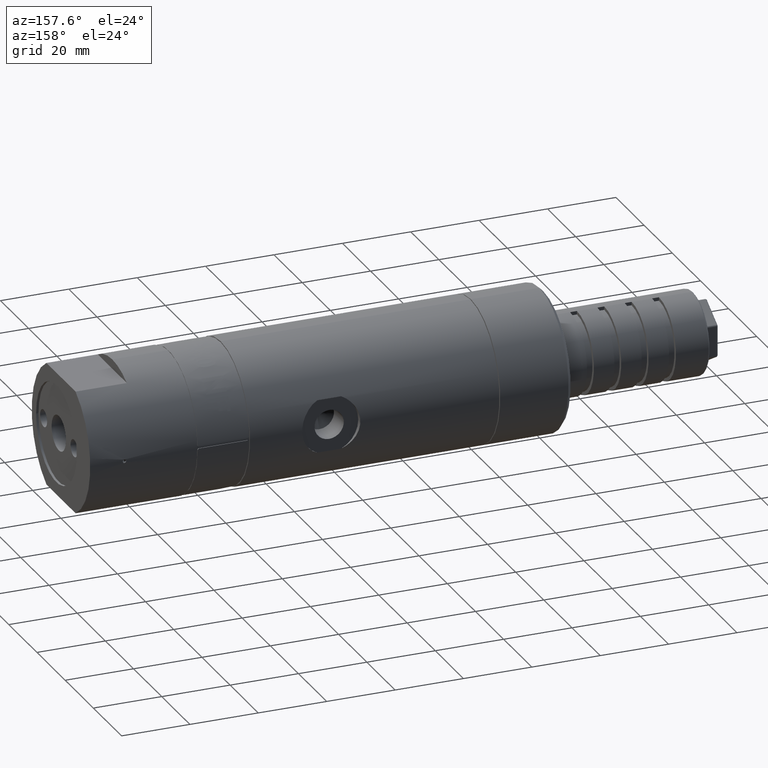
[diagram: clean part render]
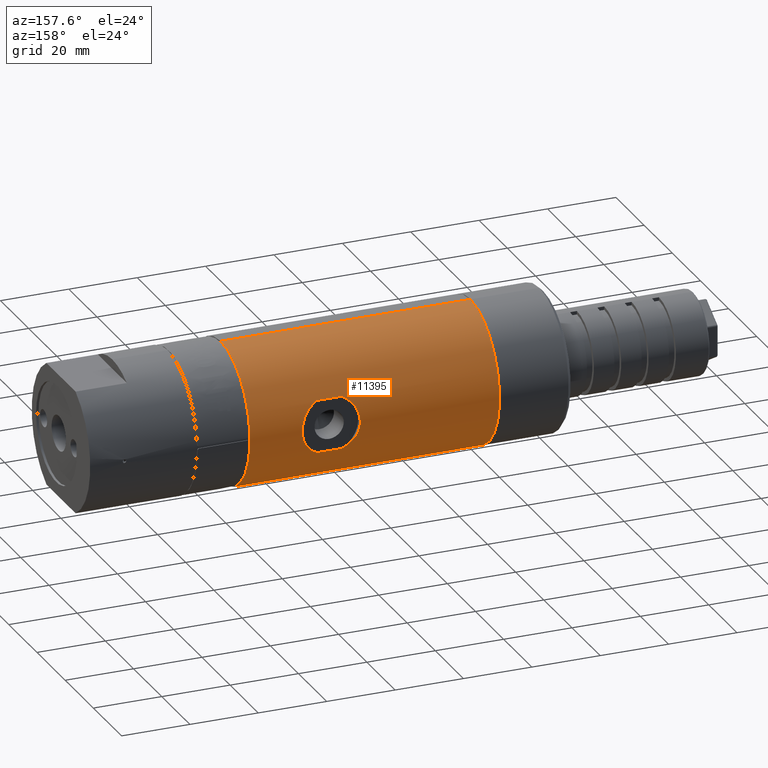
[diagram: same view with one face highlighted and labeled with its STEP entity id]
A machine part, auxiliary view. The second image highlights one B-rep face of the part: STEP entity #11395.
In plain terms, the highlighted cylindrical surface (partial cylindrical patch) has radius 20.75 mm, axis along (1, 0, 0).
Its self-contained STEP definition (entity closure, byte-faithful):
#72 = LINE ( 'NONE', #18176, #18380 ) ;
#102 = CARTESIAN_POINT ( 'NONE',  ( -78.96210577950921600, 20.73450130442244800, -0.8278428492540156300 ) ) ;
#316 = CYLINDRICAL_SURFACE ( 'NONE', #9863, 20.75000000000000000 ) ;
#356 = EDGE_CURVE ( 'NONE', #13719, #6811, #15074, .T. ) ;
#488 = EDGE_CURVE ( 'NONE', #3478, #14555, #15658, .T. ) ;
#613 = CARTESIAN_POINT ( 'NONE',  ( 0.0000000000000000000, 19.25000000000000000, 7.745966692414829600 ) ) ;
#787 = EDGE_LOOP ( 'NONE', ( #5572, #4416, #2436, #18032 ) ) ;
#1001 = CARTESIAN_POINT ( 'NONE',  ( -46.69999999999999600, 0.0000000000000000000, -20.75000000000000000 ) ) ;
#1033 = CARTESIAN_POINT ( 'NONE',  ( -62.03789422049075600, 20.73450130442244400, 0.8278428492540128600 ) ) ;
#1101 = CARTESIAN_POINT ( 'NONE',  ( -64.36598534288829400, 19.89662988271893700, -5.897899854176816200 ) ) ;
#1213 = CARTESIAN_POINT ( 'NONE',  ( -62.23991907072714700, 20.65260302551457300, 2.045980382197314400 ) ) ;
#1247 = EDGE_LOOP ( 'NONE', ( #3687, #9314, #10057, #13323 ) ) ;
#1277 = CARTESIAN_POINT ( 'NONE',  ( -78.52735853897979700, 20.56063131046049000, -2.824267616416937400 ) ) ;
#1467 = CARTESIAN_POINT ( 'NONE',  ( -76.34614309362868300, 19.80916484244842100, 6.183570100048255500 ) ) ;
#1658 = FACE_BOUND ( 'NONE', #1247, .T. ) ;
#1807 = CARTESIAN_POINT ( 'NONE',  ( -119.7000000000000000, 0.0000000000000000000, 0.0000000000000000000 ) ) ;
#2127 = CARTESIAN_POINT ( 'NONE',  ( -67.00000000000000000, 19.25000000000000000, 7.745966692414829600 ) ) ;
#2429 = CARTESIAN_POINT ( 'NONE',  ( -65.57713645101269200, 19.54999994802512100, 6.976011603570524900 ) ) ;
#2436 = ORIENTED_EDGE ( 'NONE', *, *, #10224, .F. ) ;
#2563 = CARTESIAN_POINT ( 'NONE',  ( -65.57518557414859100, 19.55041656501267200, -6.975092535909417400 ) ) ;
#2680 = CARTESIAN_POINT ( 'NONE',  ( -78.93928701185345200, 20.72518538321733000, -1.034908741973208400 ) ) ;
#2809 = CARTESIAN_POINT ( 'NONE',  ( -78.99230265718544800, 20.74684348378641400, -0.4163575211595544300 ) ) ;
#3102 = CARTESIAN_POINT ( 'NONE',  ( 0.0000000000000000000, 0.0000000000000000000, 0.0000000000000000000 ) ) ;
#3221 = DIRECTION ( 'NONE',  ( 1.000000000000000000, 0.0000000000000000000, 0.0000000000000000000 ) ) ;
#3414 = VECTOR ( 'NONE', #5487, 1000.000000000000000 ) ;
#3431 = CARTESIAN_POINT ( 'NONE',  ( -46.69999999999999600, 2.541142108230757900E-015, 20.75000000000000000 ) ) ;
#3478 = VERTEX_POINT ( 'NONE', #15979 ) ;
#3620 = EDGE_CURVE ( 'NONE', #11113, #6713, #72, .T. ) ;
#3654 = LINE ( 'NONE', #14275, #5020 ) ;
#3687 = ORIENTED_EDGE ( 'NONE', *, *, #488, .F. ) ;
#4128 = CARTESIAN_POINT ( 'NONE',  ( -78.84902143031295900, 20.68853872183755300, -1.647497085513964600 ) ) ;
#4190 = CARTESIAN_POINT ( 'NONE',  ( -78.04014256731947800, 20.37500826200443500, -3.944994109799393900 ) ) ;
#4328 = CARTESIAN_POINT ( 'NONE',  ( -78.04576897151741800, 20.37710067763839200, 3.934006386454518700 ) ) ;
#4384 = CARTESIAN_POINT ( 'NONE',  ( -74.74707242011093900, 19.38583134911108300, 7.408403470906419500 ) ) ;
#4416 = ORIENTED_EDGE ( 'NONE', *, *, #18209, .T. ) ;
#4813 = EDGE_CURVE ( 'NONE', #3478, #6811, #6814, .T. ) ;
#4845 = VERTEX_POINT ( 'NONE', #3431 ) ;
#4879 = VERTEX_POINT ( 'NONE', #13765 ) ;
#5020 = VECTOR ( 'NONE', #8561, 1000.000000000000000 ) ;
#5227 = EDGE_CURVE ( 'NONE', #11113, #4879, #12434, .T. ) ;
#5350 = CARTESIAN_POINT ( 'NONE',  ( -62.61344120870091200, 20.50574095768579500, -3.196439589850427900 ) ) ;
#5475 = CARTESIAN_POINT ( 'NONE',  ( -62.23653081448654200, 20.65395730483666600, -2.032774309016754300 ) ) ;
#5487 = DIRECTION ( 'NONE',  ( 1.000000000000000000, 0.0000000000000000000, 0.0000000000000000000 ) ) ;
#5529 = CARTESIAN_POINT ( 'NONE',  ( -61.99971033519337000, 20.75011865784747700, -0.4038671879024275900 ) ) ;
#5572 = ORIENTED_EDGE ( 'NONE', *, *, #5227, .T. ) ;
#5728 = CARTESIAN_POINT ( 'NONE',  ( -77.15980789522343700, 20.06495935749557400, -5.297033545447710000 ) ) ;
#6127 = CARTESIAN_POINT ( 'NONE',  ( -67.00000000000000000, 19.25000000000000000, -7.745966692414840300 ) ) ;
#6437 = DIRECTION ( 'NONE',  ( 1.000000000000000000, 0.0000000000000000000, 0.0000000000000000000 ) ) ;
#6627 = DIRECTION ( 'NONE',  ( -1.000000000000000000, -0.0000000000000000000, -0.0000000000000000000 ) ) ;
#6713 = VERTEX_POINT ( 'NONE', #1001 ) ;
#6811 = VERTEX_POINT ( 'NONE', #6127 ) ;
#6814 = LINE ( 'NONE', #18440, #3414 ) ;
#6866 = CARTESIAN_POINT ( 'NONE',  ( -66.25301022310377200, 19.38581632307204900, 7.408440813082420600 ) ) ;
#6997 = CARTESIAN_POINT ( 'NONE',  ( -63.15841202774746700, 20.30194818627635200, 4.302694846518250000 ) ) ;
#7119 = CARTESIAN_POINT ( 'NONE',  ( -77.40202713234178600, 20.14716269700299700, -4.977360581773782000 ) ) ;
#7186 = CARTESIAN_POINT ( 'NONE',  ( -77.40554948962446200, 20.14836133951550300, 4.972652288044034900 ) ) ;
#7600 = DIRECTION ( 'NONE',  ( 0.0000000000000000000, 0.0000000000000000000, -1.000000000000000000 ) ) ;
#8313 = CARTESIAN_POINT ( 'NONE',  ( -62.46972922977705200, 20.56176738544581200, -2.816353267655112200 ) ) ;
#8416 = CARTESIAN_POINT ( 'NONE',  ( -119.7000000000000000, 0.0000000000000000000, -20.75000000000000000 ) ) ;
#8561 = DIRECTION ( 'NONE',  ( 1.000000000000000000, 0.0000000000000000000, 0.0000000000000000000 ) ) ;
#8567 = CARTESIAN_POINT ( 'NONE',  ( -77.84158797225256900, 20.30194818627635200, -4.302694846518253500 ) ) ;
#8835 = EDGE_CURVE ( 'NONE', #13719, #14555, #17985, .T. ) ;
#9038 = CARTESIAN_POINT ( 'NONE',  ( -74.00000000000000000, 19.25000000000000000, 7.745966692414829600 ) ) ;
#9314 = ORIENTED_EDGE ( 'NONE', *, *, #4813, .T. ) ;
#9714 = CARTESIAN_POINT ( 'NONE',  ( -62.61642997152204500, 20.50458212534851700, 3.204068049829635400 ) ) ;
#9783 = CARTESIAN_POINT ( 'NONE',  ( -63.83711707107909900, 20.06598499453112400, -5.293141749382354700 ) ) ;
#9838 = CARTESIAN_POINT ( 'NONE',  ( -62.95985743268052200, 20.37500826200443500, 3.944994109799393900 ) ) ;
#9863 = AXIS2_PLACEMENT_3D ( 'NONE', #3102, #3221, #7600 ) ;
#9906 = CARTESIAN_POINT ( 'NONE',  ( -63.84019210477655500, 20.06495935749556700, 5.297033545447720600 ) ) ;
#10028 = CARTESIAN_POINT ( 'NONE',  ( -78.85317409799947100, 20.69021786009171700, 1.625871404236658000 ) ) ;
#10057 = ORIENTED_EDGE ( 'NONE', *, *, #356, .F. ) ;
#10153 = CARTESIAN_POINT ( 'NONE',  ( -78.97108283039868600, 20.73810121264829600, 0.8122382748480251300 ) ) ;
#10217 = CARTESIAN_POINT ( 'NONE',  ( -78.38655879129908000, 20.50574095768579100, 3.196439589850426100 ) ) ;
#10224 = EDGE_CURVE ( 'NONE', #6713, #4845, #13528, .T. ) ;
#10660 = DIRECTION ( 'NONE',  ( 1.000000000000000000, 0.0000000000000000000, 0.0000000000000000000 ) ) ;
#11113 = VERTEX_POINT ( 'NONE', #8416 ) ;
#11152 = CARTESIAN_POINT ( 'NONE',  ( -63.15311770960967400, 20.30385506013282200, -4.293856674668074200 ) ) ;
#11208 = CARTESIAN_POINT ( 'NONE',  ( -64.65385690637130300, 19.80916484244842500, -6.183570100048262600 ) ) ;
#11273 = CARTESIAN_POINT ( 'NONE',  ( -67.00000000000000000, 19.25000000000000000, 7.745966692414829600 ) ) ;
#11395 = ADVANCED_FACE ( 'NONE', ( #1658, #13865 ), #316, .T. ) ;
#11461 = CARTESIAN_POINT ( 'NONE',  ( -78.38357002847793400, 20.50458212534850900, -3.204068049829634100 ) ) ;
#11528 = CARTESIAN_POINT ( 'NONE',  ( -79.00028966480663000, 20.75011865784748000, 0.4038671879024222600 ) ) ;
#12005 = AXIS2_PLACEMENT_3D ( 'NONE', #18746, #14545, #16025 ) ;
#12434 = CIRCLE ( 'NONE', #12629, 20.75000000000000000 ) ;
#12597 = CARTESIAN_POINT ( 'NONE',  ( -63.59797286765820000, 20.14716269700299700, 4.977360581773780300 ) ) ;
#12629 = AXIS2_PLACEMENT_3D ( 'NONE', #1807, #10660, #13430 ) ;
#12662 = CARTESIAN_POINT ( 'NONE',  ( -67.00000000000000000, 19.25000000000000000, -7.745966692414840300 ) ) ;
#12782 = CARTESIAN_POINT ( 'NONE',  ( -78.99985193678529100, 20.74993934761149800, -0.2110102497465048700 ) ) ;
#12843 = CARTESIAN_POINT ( 'NONE',  ( -75.42286354898732300, 19.54999994802513500, -6.976011603570517700 ) ) ;
#12911 = CARTESIAN_POINT ( 'NONE',  ( -78.76346918551341500, 20.65395730483666600, 2.032774309016759600 ) ) ;
#12974 = CARTESIAN_POINT ( 'NONE',  ( -74.00000000000000000, 19.25000000000000000, -7.745966692414840300 ) ) ;
#13031 = CARTESIAN_POINT ( 'NONE',  ( -75.42481442585140900, 19.55041656501267200, 6.975092535909410300 ) ) ;
#13323 = ORIENTED_EDGE ( 'NONE', *, *, #8835, .T. ) ;
#13430 = DIRECTION ( 'NONE',  ( 0.0000000000000000000, 0.0000000000000000000, -1.000000000000000000 ) ) ;
#13528 = CIRCLE ( 'NONE', #12005, 20.75000000000000000 ) ;
#13719 = VERTEX_POINT ( 'NONE', #2127 ) ;
#13765 = CARTESIAN_POINT ( 'NONE',  ( -119.7000000000000000, 2.541142108230757900E-015, 20.75000000000000000 ) ) ;
#13865 = FACE_OUTER_BOUND ( 'NONE', #787, .T. ) ;
#13978 = CARTESIAN_POINT ( 'NONE',  ( -62.14682590200052900, 20.69021786009171000, -1.625871404236672600 ) ) ;
#14041 = CARTESIAN_POINT ( 'NONE',  ( -62.00014806321470900, 20.74993934761149100, 0.2110102497465004000 ) ) ;
#14154 = CARTESIAN_POINT ( 'NONE',  ( -62.15097856968703400, 20.68853872183754900, 1.647497085513965000 ) ) ;
#14275 = CARTESIAN_POINT ( 'NONE',  ( 0.0000000000000000000, 2.541142108230757900E-015, 20.75000000000000000 ) ) ;
#14349 = CARTESIAN_POINT ( 'NONE',  ( -78.53027077022292700, 20.56176738544580100, 2.816353267655110000 ) ) ;
#14417 = CARTESIAN_POINT ( 'NONE',  ( -77.16288292892089400, 20.06598499453112400, 5.293141749382351200 ) ) ;
#14479 = CARTESIAN_POINT ( 'NONE',  ( -74.00000000000000000, 19.25000000000000000, 7.745966692414829600 ) ) ;
#14545 = DIRECTION ( 'NONE',  ( 1.000000000000000000, 0.0000000000000000000, 0.0000000000000000000 ) ) ;
#14555 = VERTEX_POINT ( 'NONE', #9038 ) ;
#15074 = B_SPLINE_CURVE_WITH_KNOTS ( 'NONE', 3,
 ( #11273, #6866, #2429, #15447, #15380, #9906, #12597, #6997, #9838, #9714, #18368, #1213, #14154, #15510, #1033, #18489, #14041, #5529, #15637, #13978, #5475, #8313, #5350, #16906, #11152, #18427, #9783, #1101, #11208, #2563, #15572, #12662 ),
 .UNSPECIFIED., .F., .F.,
 ( 4, 2, 2, 2, 2, 2, 2, 2, 2, 2, 2, 2, 2, 2, 2, 4 ),
 ( 0.0000000000000000000, 0.002456142161590054400, 0.003684213242385065100, 0.004912284323180075900, 0.006140355403975087000, 0.007368426484770097300, 0.008596497565565108500, 0.009210533105962613600, 0.009824568646360115300, 0.01105263972715512400, 0.01228071080795013400, 0.01350878188874514100, 0.01473685296954014800, 0.01596492405033515500, 0.01719299513113016100, 0.01964913729272017900 ),
 .UNSPECIFIED. ) ;
#15380 = CARTESIAN_POINT ( 'NONE',  ( -64.36983964538139000, 19.89543713493138100, 5.901926770940244500 ) ) ;
#15447 = CARTESIAN_POINT ( 'NONE',  ( -64.65974881407298400, 19.80744524228656500, 6.189006134998771300 ) ) ;
#15482 = VECTOR ( 'NONE', #6627, 1000.000000000000000 ) ;
#15510 = CARTESIAN_POINT ( 'NONE',  ( -62.06071298814654100, 20.72518538321733300, 1.034908741973209900 ) ) ;
#15572 = CARTESIAN_POINT ( 'NONE',  ( -66.25292757988904700, 19.38583134911108300, -7.408403470906431900 ) ) ;
#15637 = CARTESIAN_POINT ( 'NONE',  ( -62.02891716960129300, 20.73810121264829200, -0.8122382748480340100 ) ) ;
#15658 = B_SPLINE_CURVE_WITH_KNOTS ( 'NONE', 3,
 ( #12974, #15766, #12843, #15703, #17218, #5728, #7119, #8567, #4190, #11461, #1277, #18673, #4128, #2680, #102, #2809, #12782, #11528, #10153, #10028, #12911, #14349, #10217, #4328, #15834, #7186, #14417, #17346, #1467, #13031, #4384, #14479 ),
 .UNSPECIFIED., .F., .F.,
 ( 4, 2, 2, 2, 2, 2, 2, 2, 2, 2, 2, 2, 2, 2, 2, 4 ),
 ( 0.0000000000000000000, 0.002456142161589997200, 0.003684213242385008300, 0.004912284323180020300, 0.006140355403975031500, 0.007368426484770041800, 0.008596497565565052900, 0.009210533105962561600, 0.009824568646360071900, 0.01105263972715509100, 0.01228071080795010600, 0.01350878188874512400, 0.01473685296954013900, 0.01596492405033515500, 0.01719299513113017200, 0.01964913729272019900 ),
 .UNSPECIFIED. ) ;
#15703 = CARTESIAN_POINT ( 'NONE',  ( -76.34025118592703100, 19.80744524228657300, -6.189006134998764200 ) ) ;
#15766 = CARTESIAN_POINT ( 'NONE',  ( -74.74698977689624300, 19.38581632307204600, -7.408440813082432200 ) ) ;
#15834 = CARTESIAN_POINT ( 'NONE',  ( -77.84688229039032600, 20.30385506013281800, 4.293856674668058200 ) ) ;
#15979 = CARTESIAN_POINT ( 'NONE',  ( -74.00000000000000000, 19.25000000000000000, -7.745966692414840300 ) ) ;
#16025 = DIRECTION ( 'NONE',  ( 0.0000000000000000000, 0.0000000000000000000, -1.000000000000000000 ) ) ;
#16906 = CARTESIAN_POINT ( 'NONE',  ( -62.95423102848257500, 20.37710067763839200, -3.934006386454523200 ) ) ;
#17218 = CARTESIAN_POINT ( 'NONE',  ( -76.63016035461863900, 19.89543713493138100, -5.901926770940241000 ) ) ;
#17346 = CARTESIAN_POINT ( 'NONE',  ( -76.63401465711169200, 19.89662988271893300, 5.897899854176809100 ) ) ;
#17985 = LINE ( 'NONE', #613, #15482 ) ;
#18032 = ORIENTED_EDGE ( 'NONE', *, *, #3620, .F. ) ;
#18176 = CARTESIAN_POINT ( 'NONE',  ( 0.0000000000000000000, 0.0000000000000000000, -20.75000000000000000 ) ) ;
#18209 = EDGE_CURVE ( 'NONE', #4879, #4845, #3654, .T. ) ;
#18368 = CARTESIAN_POINT ( 'NONE',  ( -62.47264146102018900, 20.56063131046049400, 2.824267616416942700 ) ) ;
#18380 = VECTOR ( 'NONE', #6437, 1000.000000000000000 ) ;
#18427 = CARTESIAN_POINT ( 'NONE',  ( -63.59445051037551600, 20.14836133951550300, -4.972652288044048200 ) ) ;
#18440 = CARTESIAN_POINT ( 'NONE',  ( 0.0000000000000000000, 19.25000000000000000, -7.745966692414840300 ) ) ;
#18489 = CARTESIAN_POINT ( 'NONE',  ( -62.00769734281457300, 20.74684348378641400, 0.4163575211595514400 ) ) ;
#18673 = CARTESIAN_POINT ( 'NONE',  ( -78.76008092927284600, 20.65260302551457600, -2.045980382197309500 ) ) ;
#18746 = CARTESIAN_POINT ( 'NONE',  ( -46.69999999999999600, 0.0000000000000000000, 0.0000000000000000000 ) ) ;